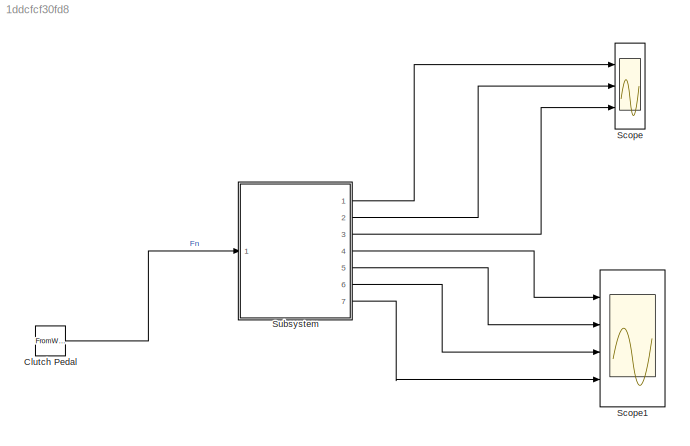
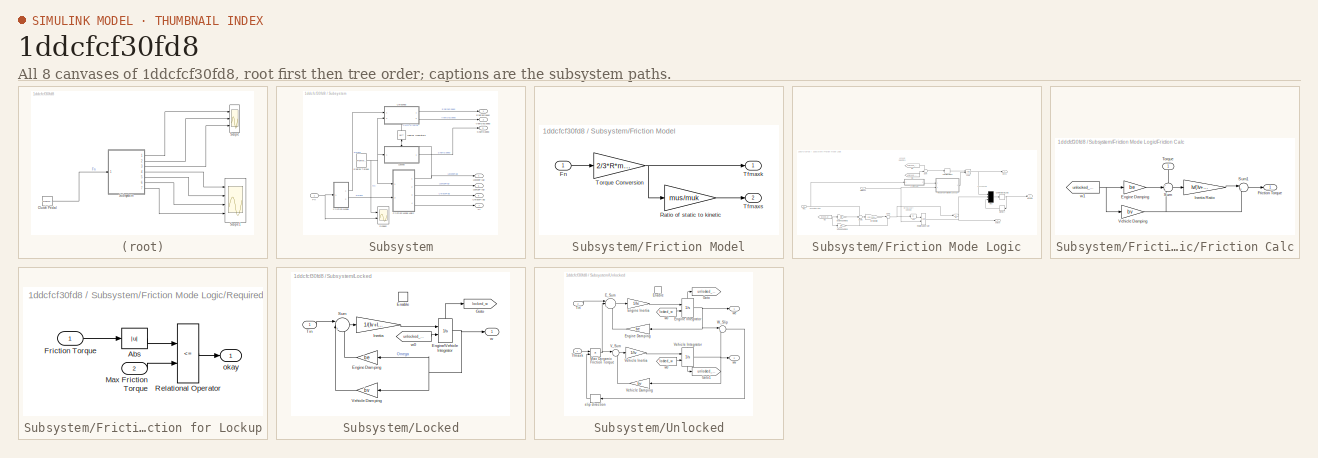
[diagram: thumbnail index - all 8 canvases of the model, root first then tree order]
MODEL slx_1ddcfcf30fd8
KIND model
CONFIG AbsTol = auto
CONFIG EnableMultiTasking = off
CONFIG FixedStep = auto
CONFIG MaxStep = auto
CONFIG MinStep = auto
CONFIG RelTol = 1e-3
CONFIG SampleTimeConstraint = Unconstrained
CONFIG SolverName = VariableStepAuto
CONFIG StartTime = 0.0
CONFIG StopTime = 10.0
BLOCK [FromWorkspace] Clutch Pedal
  VariableName = Fn
  ZeroCross = off
BLOCK [Scope] Scope
  Floating = off
  NumInputPorts = 3
  Ports = [3]
  ScopeSpecificationString = Simulink.scopes.TimeScopeBlockCfg('CurrentConfiguration', extmgr.ConfigurationSet(extmgr.Configuration('Core','General UI',true),extmgr.Configuration('Core','Source UI',true),extmgr.Configuration('Sources','WiredSimulink',true,'DataLoggingVariableName','ScopeData1'),extmgr.Configuration('Visuals','Time Domain',true),extmgr.Configuration('Tools','Plot Navigation',true),extmgr.Configuration('Tools',...<+58ch>
BLOCK [Scope] Scope1
  Floating = off
  NumInputPorts = 4
  Ports = [4]
  ScopeSpecificationString = Simulink.scopes.TimeScopeBlockCfg('CurrentConfiguration', extmgr.ConfigurationSet(extmgr.Configuration('Core','General UI',true),extmgr.Configuration('Core','Source UI',true),extmgr.Configuration('Sources','WiredSimulink',true,'DataLoggingVariableName','ScopeData2'),extmgr.Configuration('Visuals','Time Domain',true),extmgr.Configuration('Tools','Plot Navigation',true),extmgr.Configuration('Tools',...<+40ch>
BLOCK [SubSystem] Subsystem
  Ports = [1, 7]
  RequestExecContextInheritance = off
  TreatAsAtomicUnit = on
BLOCK [FromWorkspace] Subsystem/Engine Torque
  VariableName = Tin
  ZeroCross = off
BLOCK [Outport] Subsystem/EngineSpeed
BLOCK [Inport] Subsystem/Fn
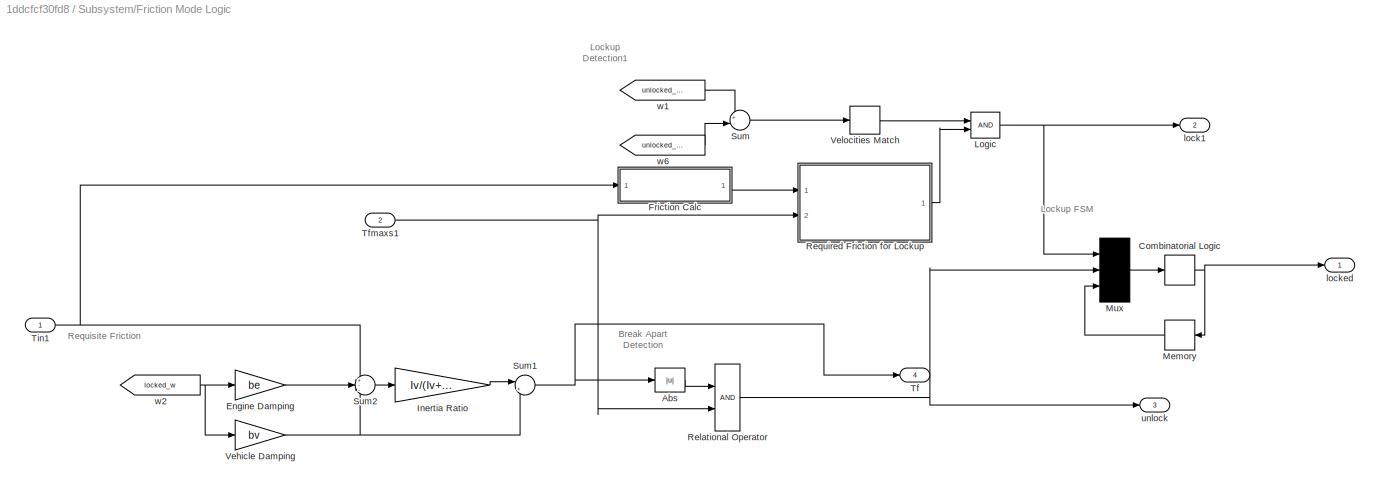
BLOCK [SubSystem] Subsystem/Friction Mode Logic
  Ports = [2, 4]
  RequestExecContextInheritance = off
BLOCK [Abs] Subsystem/Friction Mode Logic/Abs
BLOCK [CombinatorialLogic] Subsystem/Friction Mode Logic/Combinatorial Logic
  TruthTable = [0;1;0;0;1;1;1;0]
BLOCK [Gain] Subsystem/Friction Mode Logic/Engine Damping
  Gain = be
  NameLocation = top
  OutDataTypeStr = Inherit: Same as input
  ParamDataTypeStr = Inherit: Same as input
  SaturateOnIntegerOverflow = on
BLOCK [SubSystem] Subsystem/Friction Mode Logic/Friction Calc
  Ports = [1, 1]
  RequestExecContextInheritance = off
BLOCK [Gain] Subsystem/Friction Mode Logic/Friction Calc/Engine Damping
  Gain = be
  NameLocation = top
  OutDataTypeStr = Inherit: Same as input
  ParamDataTypeStr = Inherit: Same as input
  SaturateOnIntegerOverflow = on
BLOCK [Outport] Subsystem/Friction Mode Logic/Friction Calc/Friction Torque
  InitialOutput = 0
  VectorParamsAs1DForOutWhenUnconnected = off
BLOCK [Gain] Subsystem/Friction Mode Logic/Friction Calc/Inertia Ratio
  Gain = Iv/(Iv+Ie)
  OutDataTypeStr = Inherit: Same as input
  ParamDataTypeStr = Inherit: Same as input
  SaturateOnIntegerOverflow = on
BLOCK [Sum] Subsystem/Friction Mode Logic/Friction Calc/Sum
  InputSameDT = on
  Inputs = +--
  OutDataTypeStr = Inherit: Same as first input
  Ports = [3, 1]
  SaturateOnIntegerOverflow = on
BLOCK [Sum] Subsystem/Friction Mode Logic/Friction Calc/Sum1
  InputSameDT = on
  Inputs = |++
  OutDataTypeStr = Inherit: Same as first input
  Ports = [2, 1]
  SaturateOnIntegerOverflow = on
BLOCK [Inport] Subsystem/Friction Mode Logic/Friction Calc/Torque
  NameLocation = left
BLOCK [Gain] Subsystem/Friction Mode Logic/Friction Calc/Vehicle Damping
  Gain = bv
  OutDataTypeStr = Inherit: Same as input
  ParamDataTypeStr = Inherit: Same as input
  SaturateOnIntegerOverflow = on
BLOCK [From] Subsystem/Friction Mode Logic/Friction Calc/w1
  GotoTag = unlocked_we
  TagVisibility = global
BLOCK [Gain] Subsystem/Friction Mode Logic/Inertia Ratio
  Gain = Iv/(Iv+Ie)
  OutDataTypeStr = Inherit: Same as input
  ParamDataTypeStr = Inherit: Same as input
  SaturateOnIntegerOverflow = on
BLOCK [Logic] Subsystem/Friction Mode Logic/Logic
  AttributesFormatString = (%<Operator>)
  IconShape = distinctive
  OutDataTypeStr = boolean
  Ports = [2, 1]
BLOCK [Memory] Subsystem/Friction Mode Logic/Memory
BLOCK [Mux] Subsystem/Friction Mode Logic/Mux
  Inputs = 3
  Ports = [3, 1]
BLOCK [RelationalOperator] Subsystem/Friction Mode Logic/Relational Operator
  OutDataTypeStr = boolean
  Ports = [2, 1]
BLOCK [SubSystem] Subsystem/Friction Mode Logic/Required Friction for Lockup
  Ports = [2, 1]
  RequestExecContextInheritance = off
BLOCK [Abs] Subsystem/Friction Mode Logic/Required Friction for Lockup/Abs
BLOCK [Inport] Subsystem/Friction Mode Logic/Required Friction for Lockup/Friction Torque
BLOCK [Inport] Subsystem/Friction Mode Logic/Required Friction for Lockup/Max Friction Torque
  Port = 2
BLOCK [RelationalOperator] Subsystem/Friction Mode Logic/Required Friction for Lockup/Relational Operator
  Operator = <=
  OutDataTypeStr = boolean
  Ports = [2, 1]
BLOCK [Outport] Subsystem/Friction Mode Logic/Required Friction for Lockup/okay
  InitialOutput = 0
  VectorParamsAs1DForOutWhenUnconnected = off
BLOCK [Sum] Subsystem/Friction Mode Logic/Sum
  InputSameDT = on
  Inputs = +-
  OutDataTypeStr = Inherit: Same as first input
  Ports = [2, 1]
  SaturateOnIntegerOverflow = on
BLOCK [Sum] Subsystem/Friction Mode Logic/Sum1
  InputSameDT = on
  Inputs = |++
  OutDataTypeStr = Inherit: Same as first input
  Ports = [2, 1]
  SaturateOnIntegerOverflow = on
BLOCK [Sum] Subsystem/Friction Mode Logic/Sum2
  InputSameDT = on
  Inputs = +--
  OutDataTypeStr = Inherit: Same as first input
  Ports = [3, 1]
  SaturateOnIntegerOverflow = on
BLOCK [Outport] Subsystem/Friction Mode Logic/Tf
  InitialOutput = 0
  Port = 4
  VectorParamsAs1DForOutWhenUnconnected = off
BLOCK [Inport] Subsystem/Friction Mode Logic/Tfmaxs1
  Port = 2
BLOCK [Inport] Subsystem/Friction Mode Logic/Tin1
BLOCK [Gain] Subsystem/Friction Mode Logic/Vehicle Damping
  Gain = bv
  OutDataTypeStr = Inherit: Same as input
  ParamDataTypeStr = Inherit: Same as input
  SaturateOnIntegerOverflow = on
BLOCK [HitCross] Subsystem/Friction Mode Logic/Velocities Match
  Ports = [1, 1]
BLOCK [Outport] Subsystem/Friction Mode Logic/lock1
  InitialOutput = 0
  Port = 2
  VectorParamsAs1DForOutWhenUnconnected = off
BLOCK [Outport] Subsystem/Friction Mode Logic/locked
  InitialOutput = 0
  VectorParamsAs1DForOutWhenUnconnected = off
BLOCK [Outport] Subsystem/Friction Mode Logic/unlock
  InitialOutput = 0
  Port = 3
  VectorParamsAs1DForOutWhenUnconnected = off
BLOCK [From] Subsystem/Friction Mode Logic/w1
  GotoTag = unlocked_we
  TagVisibility = global
BLOCK [From] Subsystem/Friction Mode Logic/w2
  GotoTag = locked_w
  NameLocation = top
  TagVisibility = global
BLOCK [From] Subsystem/Friction Mode Logic/w6
  GotoTag = unlocked_wv
  TagVisibility = global
BLOCK [SubSystem] Subsystem/Friction Model
  Ports = [1, 2]
  RequestExecContextInheritance = off
BLOCK [Inport] Subsystem/Friction Model/Fn
BLOCK [Gain] Subsystem/Friction Model/Ratio of static to kinetic
  Gain = mus/muk
  OutDataTypeStr = Inherit: Same as input
  ParamDataTypeStr = Inherit: Same as input
  SaturateOnIntegerOverflow = on
BLOCK [Outport] Subsystem/Friction Model/Tfmaxk
  InitialOutput = 0
  VectorParamsAs1DForOutWhenUnconnected = off
BLOCK [Outport] Subsystem/Friction Model/Tfmaxs
  InitialOutput = 0
  Port = 2
  VectorParamsAs1DForOutWhenUnconnected = off
BLOCK [Gain] Subsystem/Friction Model/Torque Conversion
  Gain = 2/3*R*muk
  OutDataTypeStr = Inherit: Same as input
  ParamDataTypeStr = Inherit: Same as input
  SaturateOnIntegerOverflow = on
BLOCK [SubSystem] Subsystem/Locked
  Ports = [1, 1, 1]
  RequestExecContextInheritance = off
  TreatAsAtomicUnit = on
BLOCK [EnablePort] Subsystem/Locked/Enable
  Ports = []
  StatesWhenEnabling = reset
BLOCK [Gain] Subsystem/Locked/Engine Damping
  Gain = be
  OutDataTypeStr = Inherit: Same as input
  ParamDataTypeStr = Inherit: Same as input
  SaturateOnIntegerOverflow = on
BLOCK [Integrator] Subsystem/Locked/Engine//Vehicle Integrator
  InitialConditionSource = external
  Ports = [2, 1, 0, 0, 1]
  ShowStatePort = on
BLOCK [Goto] Subsystem/Locked/Goto
  GotoTag = locked_w
  NameLocation = top
  TagVisibility = global
BLOCK [Gain] Subsystem/Locked/Inertia
  Gain = 1/(Iv+Ie)
  OutDataTypeStr = Inherit: Same as input
  ParamDataTypeStr = Inherit: Same as input
  SaturateOnIntegerOverflow = on
BLOCK [Sum] Subsystem/Locked/Sum
  InputSameDT = on
  Inputs = ||+--
  OutDataTypeStr = Inherit: Same as first input
  Ports = [3, 1]
  SaturateOnIntegerOverflow = on
BLOCK [Inport] Subsystem/Locked/Tin
BLOCK [Gain] Subsystem/Locked/Vehicle Damping
  Gain = bv
  OutDataTypeStr = Inherit: Same as input
  ParamDataTypeStr = Inherit: Same as input
  SaturateOnIntegerOverflow = on
BLOCK [Outport] Subsystem/Locked/w
  InitialOutput = 0
  VectorParamsAs1DForOutWhenUnconnected = off
BLOCK [From] Subsystem/Locked/w0
  GotoTag = unlocked_we
  TagVisibility = global
BLOCK [Outport] Subsystem/LockedFlag
  Port = 4
BLOCK [Outport] Subsystem/LockupFlag
  Port = 5
BLOCK [Logic] Subsystem/Logical Operator9
  IconShape = distinctive
  Inputs = 1
  NameLocation = left
  Operator = NOT
  OutDataTypeStr = boolean
  Ports = [1, 1]
BLOCK [Scope] Subsystem/Scope2
  Floating = off
  NumInputPorts = 2
  Ports = [2]
  ScopeSpecificationString = Simulink.scopes.TimeScopeBlockCfg('CurrentConfiguration', extmgr.ConfigurationSet(extmgr.Configuration('Core','General UI',true),extmgr.Configuration('Core','Source UI',true),extmgr.Configuration('Sources','WiredSimulink',true),extmgr.Configuration('Visuals','Time Domain',true),extmgr.Configuration('Tools','Plot Navigation',true),extmgr.Configuration('Tools','Measurements',true)),'Version','2020b'...<+1ch>
BLOCK [Outport] Subsystem/ShaftSpeed
  Port = 3
BLOCK [Outport] Subsystem/Tf
  Port = 7
BLOCK [Outport] Subsystem/UnlockFlag
  Port = 6
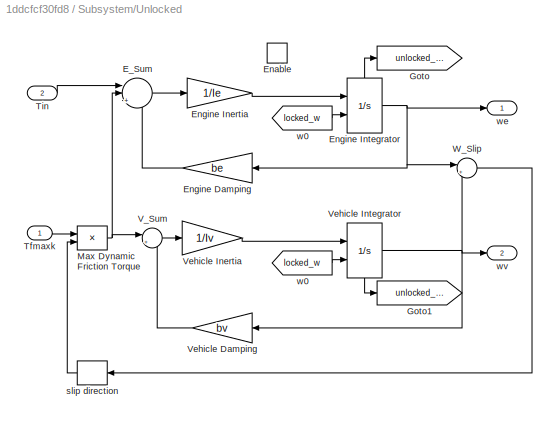
BLOCK [SubSystem] Subsystem/Unlocked
  NameLocation = top
  Ports = [2, 2, 1]
  RequestExecContextInheritance = off
  TreatAsAtomicUnit = on
BLOCK [Sum] Subsystem/Unlocked/E_Sum
  InputSameDT = on
  Inputs = ||+--
  NameLocation = top
  OutDataTypeStr = Inherit: Same as first input
  Ports = [3, 1]
  SaturateOnIntegerOverflow = on
BLOCK [EnablePort] Subsystem/Unlocked/Enable
  Ports = []
  StatesWhenEnabling = reset
BLOCK [Gain] Subsystem/Unlocked/Engine Damping
  Gain = be
  OutDataTypeStr = Inherit: Same as input
  ParamDataTypeStr = Inherit: Same as input
  SaturateOnIntegerOverflow = on
BLOCK [Gain] Subsystem/Unlocked/Engine Inertia
  Gain = 1/Ie
  OutDataTypeStr = Inherit: Same as input
  ParamDataTypeStr = Inherit: Same as input
  SaturateOnIntegerOverflow = on
BLOCK [Integrator] Subsystem/Unlocked/Engine Integrator
  InitialConditionSource = external
  Ports = [2, 1, 0, 0, 1]
  ShowStatePort = on
BLOCK [Goto] Subsystem/Unlocked/Goto
  GotoTag = unlocked_we
  TagVisibility = global
BLOCK [Goto] Subsystem/Unlocked/Goto1
  GotoTag = unlocked_wv
  TagVisibility = global
BLOCK [Product] Subsystem/Unlocked/Max Dynamic Friction Torque
  InputSameDT = on
  OutDataTypeStr = Inherit: Same as first input
  Ports = [2, 1]
  RndMeth = Zero
  SaturateOnIntegerOverflow = on
BLOCK [Inport] Subsystem/Unlocked/Tfmaxk
BLOCK [Inport] Subsystem/Unlocked/Tin
  Port = 2
BLOCK [Sum] Subsystem/Unlocked/V_Sum
  InputSameDT = on
  Inputs = |+-
  NameLocation = top
  OutDataTypeStr = Inherit: Same as first input
  Ports = [2, 1]
  SaturateOnIntegerOverflow = on
BLOCK [Gain] Subsystem/Unlocked/Vehicle Damping
  Gain = bv
  OutDataTypeStr = Inherit: Same as input
  ParamDataTypeStr = Inherit: Same as input
  SaturateOnIntegerOverflow = on
BLOCK [Gain] Subsystem/Unlocked/Vehicle Inertia
  Gain = 1/Iv
  OutDataTypeStr = Inherit: Same as input
  ParamDataTypeStr = Inherit: Same as input
  SaturateOnIntegerOverflow = on
BLOCK [Integrator] Subsystem/Unlocked/Vehicle Integrator
  InitialConditionSource = external
  NameLocation = top
  Ports = [2, 1, 0, 0, 1]
  ShowStatePort = on
BLOCK [Sum] Subsystem/Unlocked/W_Slip
  InputSameDT = on
  Inputs = |+-
  NameLocation = top
  OutDataTypeStr = Inherit: Same as first input
  Ports = [2, 1]
  SaturateOnIntegerOverflow = on
BLOCK [Signum] Subsystem/Unlocked/slip direction
BLOCK [From] Subsystem/Unlocked/w0
  GotoTag = locked_w
  TagVisibility = global
BLOCK [From] Subsystem/Unlocked/w0 
  GotoTag = locked_w
  TagVisibility = global
BLOCK [Outport] Subsystem/Unlocked/we
  InitialOutput = 0
  VectorParamsAs1DForOutWhenUnconnected = off
BLOCK [Outport] Subsystem/Unlocked/wv
  InitialOutput = 0
  Port = 2
  VectorParamsAs1DForOutWhenUnconnected = off
BLOCK [Outport] Subsystem/VehicleSpeed
  Port = 2
ANNOTATION Subsystem/Friction Mode Logic: Break Apart Detection
ANNOTATION Subsystem/Friction Mode Logic: Lockup Detection1
ANNOTATION Subsystem/Friction Mode Logic: Lockup FSM
ANNOTATION Subsystem/Friction Mode Logic: Requisite Friction
LINE Clutch Pedal:1 -> Subsystem:1
NET Subsystem/Engine Torque:1 -> Subsystem/Friction Mode Logic:1, Subsystem/Locked:1, Subsystem/Scope2:1, Subsystem/Unlocked:2
NET Subsystem/Fn:1 -> Subsystem/Friction Model:1, Subsystem/Scope2:2
LINE Subsystem/Friction Mode Logic/Abs:1 -> Subsystem/Friction Mode Logic/Relational Operator:1
NET Subsystem/Friction Mode Logic/Combinatorial Logic:1 -> Subsystem/Friction Mode Logic/Memory:1, Subsystem/Friction Mode Logic/locked:1
LINE Subsystem/Friction Mode Logic/Engine Damping:1 -> Subsystem/Friction Mode Logic/Sum2:2
LINE Subsystem/Friction Mode Logic/Friction Calc/Engine Damping:1 -> Subsystem/Friction Mode Logic/Friction Calc/Sum:2
LINE Subsystem/Friction Mode Logic/Friction Calc/Inertia Ratio:1 -> Subsystem/Friction Mode Logic/Friction Calc/Sum1:1
LINE Subsystem/Friction Mode Logic/Friction Calc/Sum1:1 -> Subsystem/Friction Mode Logic/Friction Calc/Friction Torque:1
LINE Subsystem/Friction Mode Logic/Friction Calc/Sum:1 -> Subsystem/Friction Mode Logic/Friction Calc/Inertia Ratio:1
LINE Subsystem/Friction Mode Logic/Friction Calc/Torque:1 -> Subsystem/Friction Mode Logic/Friction Calc/Sum:1
NET Subsystem/Friction Mode Logic/Friction Calc/Vehicle Damping:1 -> Subsystem/Friction Mode Logic/Friction Calc/Sum1:2, Subsystem/Friction Mode Logic/Friction Calc/Sum:3
NET Subsystem/Friction Mode Logic/Friction Calc/w1:1 -> Subsystem/Friction Mode Logic/Friction Calc/Engine Damping:1, Subsystem/Friction Mode Logic/Friction Calc/Vehicle Damping:1
LINE Subsystem/Friction Mode Logic/Friction Calc:1 -> Subsystem/Friction Mode Logic/Required Friction for Lockup:1
LINE Subsystem/Friction Mode Logic/Inertia Ratio:1 -> Subsystem/Friction Mode Logic/Sum1:1
NET Subsystem/Friction Mode Logic/Logic:1 -> Subsystem/Friction Mode Logic/Mux:1, Subsystem/Friction Mode Logic/lock1:1
LINE Subsystem/Friction Mode Logic/Memory:1 -> Subsystem/Friction Mode Logic/Mux:3
LINE Subsystem/Friction Mode Logic/Mux:1 -> Subsystem/Friction Mode Logic/Combinatorial Logic:1
NET Subsystem/Friction Mode Logic/Relational Operator:1 -> Subsystem/Friction Mode Logic/Mux:2, Subsystem/Friction Mode Logic/unlock:1
LINE Subsystem/Friction Mode Logic/Required Friction for Lockup/Abs:1 -> Subsystem/Friction Mode Logic/Required Friction for Lockup/Relational Operator:1
LINE Subsystem/Friction Mode Logic/Required Friction for Lockup/Friction Torque:1 -> Subsystem/Friction Mode Logic/Required Friction for Lockup/Abs:1
LINE Subsystem/Friction Mode Logic/Required Friction for Lockup/Max Friction Torque:1 -> Subsystem/Friction Mode Logic/Required Friction for Lockup/Relational Operator:2
LINE Subsystem/Friction Mode Logic/Required Friction for Lockup/Relational Operator:1 -> Subsystem/Friction Mode Logic/Required Friction for Lockup/okay:1
LINE Subsystem/Friction Mode Logic/Required Friction for Lockup:1 -> Subsystem/Friction Mode Logic/Logic:2
NET Subsystem/Friction Mode Logic/Sum1:1 -> Subsystem/Friction Mode Logic/Abs:1, Subsystem/Friction Mode Logic/Tf:1
LINE Subsystem/Friction Mode Logic/Sum2:1 -> Subsystem/Friction Mode Logic/Inertia Ratio:1
LINE Subsystem/Friction Mode Logic/Sum:1 -> Subsystem/Friction Mode Logic/Velocities Match:1
NET Subsystem/Friction Mode Logic/Tfmaxs1:1 -> Subsystem/Friction Mode Logic/Relational Operator:2, Subsystem/Friction Mode Logic/Required Friction for Lockup:2
NET Subsystem/Friction Mode Logic/Tin1:1 -> Subsystem/Friction Mode Logic/Friction Calc:1, Subsystem/Friction Mode Logic/Sum2:1
NET Subsystem/Friction Mode Logic/Vehicle Damping:1 -> Subsystem/Friction Mode Logic/Sum1:2, Subsystem/Friction Mode Logic/Sum2:3
LINE Subsystem/Friction Mode Logic/Velocities Match:1 -> Subsystem/Friction Mode Logic/Logic:1
LINE Subsystem/Friction Mode Logic/w1:1 -> Subsystem/Friction Mode Logic/Sum:1
NET Subsystem/Friction Mode Logic/w2:1 -> Subsystem/Friction Mode Logic/Engine Damping:1, Subsystem/Friction Mode Logic/Vehicle Damping:1
LINE Subsystem/Friction Mode Logic/w6:1 -> Subsystem/Friction Mode Logic/Sum:2
NET Subsystem/Friction Mode Logic:1 -> Subsystem/Locked:enable, Subsystem/LockedFlag:1, Subsystem/Logical Operator9:1
LINE Subsystem/Friction Mode Logic:2 -> Subsystem/LockupFlag:1
LINE Subsystem/Friction Mode Logic:3 -> Subsystem/UnlockFlag:1
LINE Subsystem/Friction Mode Logic:4 -> Subsystem/Tf:1
LINE Subsystem/Friction Model/Fn:1 -> Subsystem/Friction Model/Torque Conversion:1
LINE Subsystem/Friction Model/Ratio of static to kinetic:1 -> Subsystem/Friction Model/Tfmaxs:1
NET Subsystem/Friction Model/Torque Conversion:1 -> Subsystem/Friction Model/Ratio of static to kinetic:1, Subsystem/Friction Model/Tfmaxk:1
LINE Subsystem/Friction Model:1 -> Subsystem/Unlocked:1
LINE Subsystem/Friction Model:2 -> Subsystem/Friction Mode Logic:2
LINE Subsystem/Locked/Engine Damping:1 -> Subsystem/Locked/Sum:3
NET Subsystem/Locked/Engine//Vehicle Integrator:1 -> Subsystem/Locked/Engine Damping:1, Subsystem/Locked/Vehicle Damping:1, Subsystem/Locked/w:1
LINE Subsystem/Locked/Engine//Vehicle Integrator:state -> Subsystem/Locked/Goto:1
LINE Subsystem/Locked/Inertia:1 -> Subsystem/Locked/Engine//Vehicle Integrator:1
LINE Subsystem/Locked/Sum:1 -> Subsystem/Locked/Inertia:1
LINE Subsystem/Locked/Tin:1 -> Subsystem/Locked/Sum:1
LINE Subsystem/Locked/Vehicle Damping:1 -> Subsystem/Locked/Sum:2
LINE Subsystem/Locked/w0:1 -> Subsystem/Locked/Engine//Vehicle Integrator:2
LINE Subsystem/Locked:1 -> Subsystem/ShaftSpeed:1
LINE Subsystem/Logical Operator9:1 -> Subsystem/Unlocked:enable
LINE Subsystem/Unlocked/E_Sum:1 -> Subsystem/Unlocked/Engine Inertia:1
LINE Subsystem/Unlocked/Engine Damping:1 -> Subsystem/Unlocked/E_Sum:3
LINE Subsystem/Unlocked/Engine Inertia:1 -> Subsystem/Unlocked/Engine Integrator:1
NET Subsystem/Unlocked/Engine Integrator:1 -> Subsystem/Unlocked/Engine Damping:1, Subsystem/Unlocked/W_Slip:1, Subsystem/Unlocked/we:1
LINE Subsystem/Unlocked/Engine Integrator:state -> Subsystem/Unlocked/Goto:1
NET Subsystem/Unlocked/Max Dynamic Friction Torque:1 -> Subsystem/Unlocked/E_Sum:2, Subsystem/Unlocked/V_Sum:1
LINE Subsystem/Unlocked/Tfmaxk:1 -> Subsystem/Unlocked/Max Dynamic Friction Torque:1
LINE Subsystem/Unlocked/Tin:1 -> Subsystem/Unlocked/E_Sum:1
LINE Subsystem/Unlocked/V_Sum:1 -> Subsystem/Unlocked/Vehicle Inertia:1
LINE Subsystem/Unlocked/Vehicle Damping:1 -> Subsystem/Unlocked/V_Sum:2
LINE Subsystem/Unlocked/Vehicle Inertia:1 -> Subsystem/Unlocked/Vehicle Integrator:1
NET Subsystem/Unlocked/Vehicle Integrator:1 -> Subsystem/Unlocked/Vehicle Damping:1, Subsystem/Unlocked/W_Slip:2, Subsystem/Unlocked/wv:1
LINE Subsystem/Unlocked/Vehicle Integrator:state -> Subsystem/Unlocked/Goto1:1
LINE Subsystem/Unlocked/W_Slip:1 -> Subsystem/Unlocked/slip direction:1
LINE Subsystem/Unlocked/slip direction:1 -> Subsystem/Unlocked/Max Dynamic Friction Torque:2
LINE Subsystem/Unlocked/w0 :1 -> Subsystem/Unlocked/Engine Integrator:2
LINE Subsystem/Unlocked/w0:1 -> Subsystem/Unlocked/Vehicle Integrator:2
LINE Subsystem/Unlocked:1 -> Subsystem/EngineSpeed:1
LINE Subsystem/Unlocked:2 -> Subsystem/VehicleSpeed:1
LINE Subsystem:1 -> Scope:1
LINE Subsystem:2 -> Scope:2
LINE Subsystem:3 -> Scope:3
LINE Subsystem:4 -> Scope1:1
LINE Subsystem:5 -> Scope1:2
LINE Subsystem:6 -> Scope1:3
LINE Subsystem:7 -> Scope1:4
note: NET lines group one-source signal fan-out (src -> all destinations, sorted); 1:1 wires keep LINE
